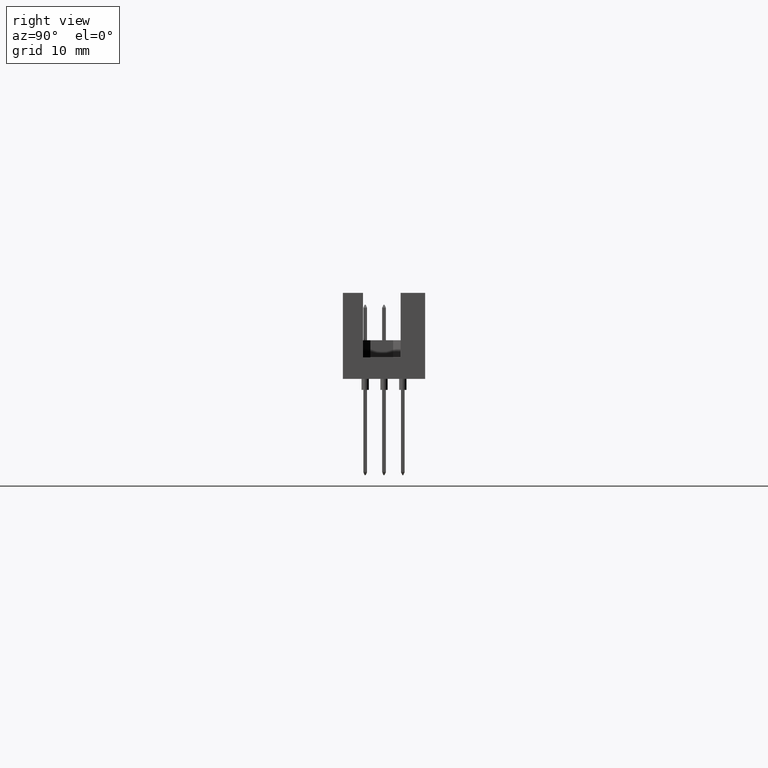
[diagram: clean part render]
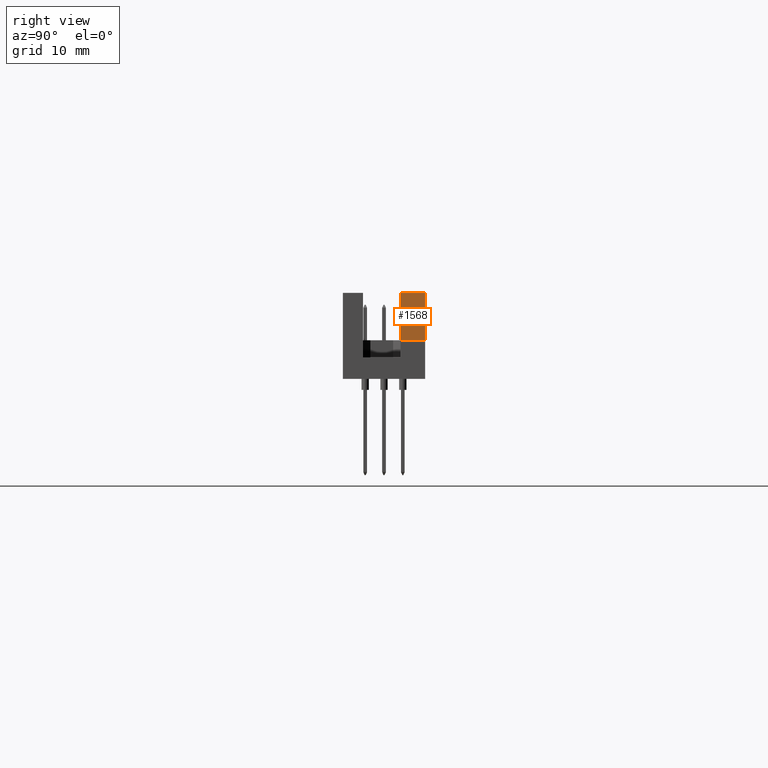
[diagram: same view with one face highlighted and labeled with its STEP entity id]
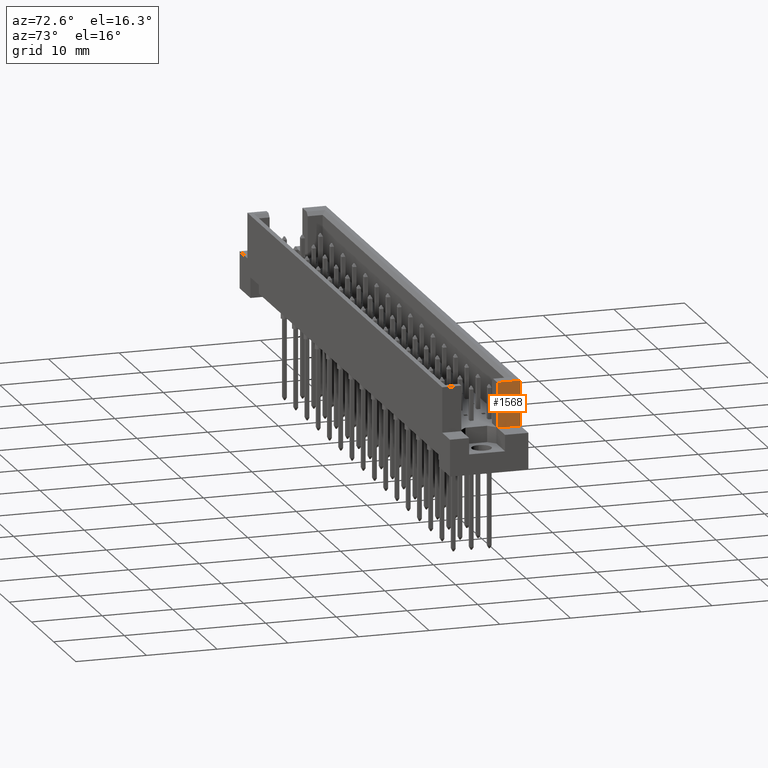
[diagram: same view with one face highlighted and labeled with its STEP entity id]
A machine part, right view. The second image highlights one B-rep face of the part: STEP entity #1568.
A second angle (auxiliary view) of the same face is appended — the face is thin or edge-on in the first view.
In plain terms, the highlighted planar face has unit normal (-1, 0, 0).
Its self-contained STEP definition (entity closure, byte-faithful):
#921 = CARTESIAN_POINT ( 'NONE',  ( 44.00000000000000000, 11.09999999999999432, 5.199999999999992184 ) ) ;
#1568 = ADVANCED_FACE ( 'NONE', ( #11660 ), #7617, .F. ) ;
#1742 = VERTEX_POINT ( 'NONE', #921 ) ;
#2058 = CARTESIAN_POINT ( 'NONE',  ( 44.00000000000000000, 0.0000000000000000000, 5.199999999999992184 ) ) ;
#2059 = EDGE_CURVE ( 'NONE', #1742, #13103, #3068, .T. ) ;
#3068 = LINE ( 'NONE', #14675, #16074 ) ;
#3248 = DIRECTION ( 'NONE',  ( 0.0000000000000000000, 0.0000000000000000000, 1.000000000000000000 ) ) ;
#3330 = LINE ( 'NONE', #15278, #6854 ) ;
#3576 = ORIENTED_EDGE ( 'NONE', *, *, #13689, .T. ) ;
#3922 = DIRECTION ( 'NONE',  ( -0.0000000000000000000, -1.000000000000000000, -0.0000000000000000000 ) ) ;
#4227 = VERTEX_POINT ( 'NONE', #7065 ) ;
#4296 = DIRECTION ( 'NONE',  ( -0.0000000000000000000, -0.0000000000000000000, 1.000000000000000000 ) ) ;
#6139 = DIRECTION ( 'NONE',  ( -0.0000000000000000000, -1.000000000000000000, -0.0000000000000000000 ) ) ;
#6854 = VECTOR ( 'NONE', #3248, 1000.000000000000000 ) ;
#7032 = ORIENTED_EDGE ( 'NONE', *, *, #7969, .F. ) ;
#7065 = CARTESIAN_POINT ( 'NONE',  ( 44.00000000000000000, 7.789999999999988489, 5.199999999999992184 ) ) ;
#7617 = PLANE ( 'NONE',  #14193 ) ;
#7661 = CARTESIAN_POINT ( 'NONE',  ( 44.00000000000000000, 0.0000000000000000000, 11.59999999999999254 ) ) ;
#7969 = EDGE_CURVE ( 'NONE', #1742, #4227, #8472, .T. ) ;
#8472 = LINE ( 'NONE', #2058, #8908 ) ;
#8908 = VECTOR ( 'NONE', #6139, 1000.000000000000000 ) ;
#9204 = VERTEX_POINT ( 'NONE', #11737 ) ;
#10361 = DIRECTION ( 'NONE',  ( 0.0000000000000000000, 0.0000000000000000000, 1.000000000000000000 ) ) ;
#10529 = CARTESIAN_POINT ( 'NONE',  ( 44.00000000000000000, 0.0000000000000000000, 5.199999999999992184 ) ) ;
#11660 = FACE_OUTER_BOUND ( 'NONE', #12910, .T. ) ;
#11737 = CARTESIAN_POINT ( 'NONE',  ( 44.00000000000000000, 7.789999999999992042, 11.59999999999999254 ) ) ;
#11917 = DIRECTION ( 'NONE',  ( -1.000000000000000000, 0.0000000000000000000, 0.0000000000000000000 ) ) ;
#12626 = VECTOR ( 'NONE', #3922, 1000.000000000000000 ) ;
#12910 = EDGE_LOOP ( 'NONE', ( #15153, #7032, #16599, #3576 ) ) ;
#13103 = VERTEX_POINT ( 'NONE', #15801 ) ;
#13689 = EDGE_CURVE ( 'NONE', #13103, #9204, #14311, .T. ) ;
#14193 = AXIS2_PLACEMENT_3D ( 'NONE', #10529, #11917, #10361 ) ;
#14311 = LINE ( 'NONE', #7661, #12626 ) ;
#14675 = CARTESIAN_POINT ( 'NONE',  ( 44.00000000000000000, 11.09999999999999432, 5.199999999999992184 ) ) ;
#14830 = EDGE_CURVE ( 'NONE', #4227, #9204, #3330, .T. ) ;
#15153 = ORIENTED_EDGE ( 'NONE', *, *, #14830, .F. ) ;
#15278 = CARTESIAN_POINT ( 'NONE',  ( 44.00000000000000000, 7.789999999999992042, 5.199999999999992184 ) ) ;
#15801 = CARTESIAN_POINT ( 'NONE',  ( 44.00000000000000000, 11.09999999999999432, 11.59999999999999254 ) ) ;
#16074 = VECTOR ( 'NONE', #4296, 1000.000000000000000 ) ;
#16599 = ORIENTED_EDGE ( 'NONE', *, *, #2059, .T. ) ;